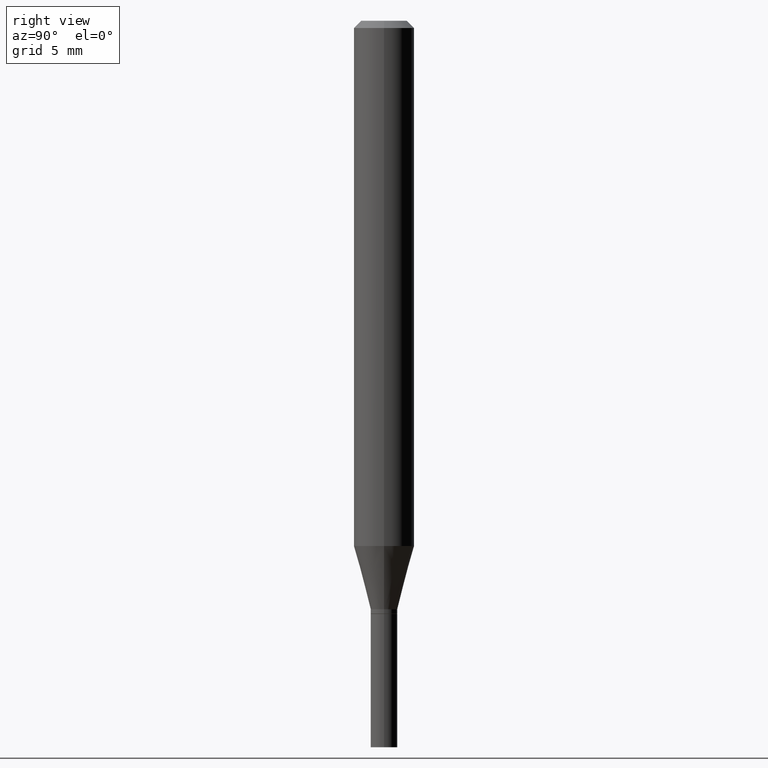
[diagram: clean part render]
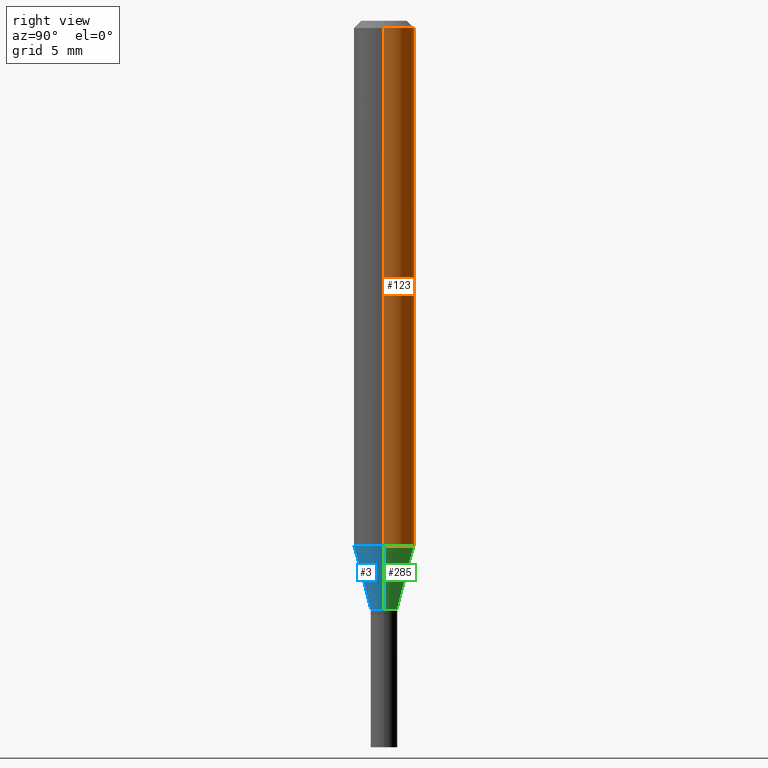
[diagram: same view with three faces highlighted in distinct colors, each labeled with its STEP entity id]
A machine part, right view with three faces highlighted in distinct colors.
Their STEP definitions:

[orange] entity #123 — the highlighted cylindrical surface (edge-blend (fillet) strip) has radius 1.5875 mm, axis along (-0, 0, 1).
#7 = AXIS2_PLACEMENT_3D ( 'NONE', #54, #225, #46 ) ;
#22 = LINE ( 'NONE', #425, #67 ) ;
#46 = DIRECTION ( 'NONE',  ( 1.000000000000000000, -6.982962677686266711E-15, 4.876176775795935793E-29 ) ) ;
#49 = CARTESIAN_POINT ( 'NONE',  ( 0.06250000000000000000, -4.222521492791372833E-15, -1.084378221735089909 ) ) ;
#54 = CARTESIAN_POINT ( 'NONE',  ( 0.000000000000000000, 0.000000000000000000, 0.000000000000000000 ) ) ;
#56 = DIRECTION ( 'NONE',  ( -2.445468806185136597E-29, 3.491481338843145583E-15, 1.000000000000000000 ) ) ;
#67 = VECTOR ( 'NONE', #197, 39.37007874015748143 ) ;
#71 = ORIENTED_EDGE ( 'NONE', *, *, #145, .F. ) ;
#81 = FACE_OUTER_BOUND ( 'NONE', #154, .T. ) ;
#83 = EDGE_CURVE ( 'NONE', #176, #367, #236, .T. ) ;
#89 = CARTESIAN_POINT ( 'NONE',  ( -0.06250000000000000000, -1.475140062909251703E-15, -0.01499999999999999944 ) ) ;
#102 = VERTEX_POINT ( 'NONE', #89 ) ;
#113 = DIRECTION ( 'NONE',  ( 1.000000000000000000, -6.982962677686266711E-15, 0.000000000000000000 ) ) ;
#123 = ADVANCED_FACE ( 'NONE', ( #81 ), #450, .T. ) ;
#143 = ORIENTED_EDGE ( 'NONE', *, *, #373, .T. ) ;
#145 = EDGE_CURVE ( 'NONE', #176, #404, #267, .T. ) ;
#154 = EDGE_LOOP ( 'NONE', ( #247, #143, #205, #71 ) ) ;
#155 = CIRCLE ( 'NONE', #424, 0.06250000000000000000 ) ;
#165 = DIRECTION ( 'NONE',  ( 1.000000000000000000, -6.982962677686262766E-15, 0.000000000000000000 ) ) ;
#176 = VERTEX_POINT ( 'NONE', #49 ) ;
#197 = DIRECTION ( 'NONE',  ( -2.445468806185136877E-29, 3.491481338843145188E-15, 1.000000000000000000 ) ) ;
#205 = ORIENTED_EDGE ( 'NONE', *, *, #245, .F. ) ;
#225 = DIRECTION ( 'NONE',  ( -2.445468806185136597E-29, 3.491481338843145583E-15, 1.000000000000000000 ) ) ;
#236 = CIRCLE ( 'NONE', #392, 0.06250000000000000000 ) ;
#245 = EDGE_CURVE ( 'NONE', #404, #102, #155, .T. ) ;
#247 = ORIENTED_EDGE ( 'NONE', *, *, #83, .T. ) ;
#263 = CARTESIAN_POINT ( 'NONE',  ( 3.668203209277705088E-31, -5.237222008264718399E-17, -0.01499999999999999944 ) ) ;
#267 = LINE ( 'NONE', #411, #272 ) ;
#272 = VECTOR ( 'NONE', #378, 39.37007874015748143 ) ;
#315 = CARTESIAN_POINT ( 'NONE',  ( -0.06250000000000000000, -3.341997115585918942E-15, -1.084378221735089909 ) ) ;
#347 = CARTESIAN_POINT ( 'NONE',  ( 2.651813115359671942E-29, -3.786086325435981164E-15, -1.084378221735089909 ) ) ;
#367 = VERTEX_POINT ( 'NONE', #315 ) ;
#373 = EDGE_CURVE ( 'NONE', #367, #102, #22, .T. ) ;
#378 = DIRECTION ( 'NONE',  ( -2.445468806185136877E-29, 3.491481338843145188E-15, 1.000000000000000000 ) ) ;
#392 = AXIS2_PLACEMENT_3D ( 'NONE', #347, #427, #165 ) ;
#404 = VERTEX_POINT ( 'NONE', #418 ) ;
#411 = CARTESIAN_POINT ( 'NONE',  ( 0.06250000000000000000, -4.364351673553916694E-16, 3.047610484872459871E-30 ) ) ;
#418 = CARTESIAN_POINT ( 'NONE',  ( 0.06250000000000000000, -4.888073874380388472E-16, -0.01499999999999999944 ) ) ;
#424 = AXIS2_PLACEMENT_3D ( 'NONE', #263, #56, #113 ) ;
#425 = CARTESIAN_POINT ( 'NONE',  ( -0.06250000000000000000, 4.440892098500626162E-16, -3.074334431409316114E-30 ) ) ;
#427 = DIRECTION ( 'NONE',  ( -2.445468806185136597E-29, 3.491481338843145583E-15, 1.000000000000000000 ) ) ;
#450 = CYLINDRICAL_SURFACE ( 'NONE', #7, 0.06250000000000000000 ) ;

[blue] entity #3 — the highlighted conical surface has half-angle 15 deg.
#3 = ADVANCED_FACE ( 'NONE', ( #403 ), #16, .T. ) ;
#13 = EDGE_CURVE ( 'NONE', #367, #176, #313, .T. ) ;
#16 = CONICAL_SURFACE ( 'NONE', #128, 0.02750000000000006953, 0.2617993877991501850 ) ;
#21 = DIRECTION ( 'NONE',  ( 1.000000000000000000, -6.982962677686280121E-15, 0.000000000000000000 ) ) ;
#49 = CARTESIAN_POINT ( 'NONE',  ( 0.06250000000000000000, -4.222521492791372833E-15, -1.084378221735089909 ) ) ;
#66 = DIRECTION ( 'NONE',  ( -2.445468806185136597E-29, 3.491481338843145583E-15, 1.000000000000000000 ) ) ;
#121 = VECTOR ( 'NONE', #379, 39.37007874015748143 ) ;
#128 = AXIS2_PLACEMENT_3D ( 'NONE', #184, #66, #151 ) ;
#151 = DIRECTION ( 'NONE',  ( 1.000000000000000000, -6.982962677686280121E-15, 0.000000000000000000 ) ) ;
#171 = VERTEX_POINT ( 'NONE', #344 ) ;
#176 = VERTEX_POINT ( 'NONE', #49 ) ;
#182 = AXIS2_PLACEMENT_3D ( 'NONE', #448, #383, #21 ) ;
#184 = CARTESIAN_POINT ( 'NONE',  ( 2.971244599514940898E-29, -4.242149826694421699E-15, -1.215000000000000080 ) ) ;
#187 = CARTESIAN_POINT ( 'NONE',  ( 2.651813115359671942E-29, -3.786086325435981164E-15, -1.084378221735089909 ) ) ;
#189 = EDGE_CURVE ( 'NONE', #296, #171, #345, .T. ) ;
#195 = EDGE_CURVE ( 'NONE', #171, #176, #226, .T. ) ;
#196 = CARTESIAN_POINT ( 'NONE',  ( 0.02750000000000006953, -4.434181300330794981E-15, -1.215000000000000080 ) ) ;
#211 = DIRECTION ( 'NONE',  ( -2.445468806185136597E-29, 3.491481338843145583E-15, 1.000000000000000000 ) ) ;
#214 = CARTESIAN_POINT ( 'NONE',  ( -0.02750000000000006953, -4.046750574360394369E-15, -1.215000000000000080 ) ) ;
#215 = ORIENTED_EDGE ( 'NONE', *, *, #302, .F. ) ;
#226 = LINE ( 'NONE', #196, #121 ) ;
#252 = EDGE_LOOP ( 'NONE', ( #215, #316, #464, #369 ) ) ;
#291 = DIRECTION ( 'NONE',  ( 1.000000000000000000, -6.982962677686262766E-15, 0.000000000000000000 ) ) ;
#296 = VERTEX_POINT ( 'NONE', #463 ) ;
#302 = EDGE_CURVE ( 'NONE', #296, #367, #407, .T. ) ;
#313 = CIRCLE ( 'NONE', #429, 0.06250000000000000000 ) ;
#315 = CARTESIAN_POINT ( 'NONE',  ( -0.06250000000000000000, -3.341997115585918942E-15, -1.084378221735089909 ) ) ;
#316 = ORIENTED_EDGE ( 'NONE', *, *, #189, .T. ) ;
#344 = CARTESIAN_POINT ( 'NONE',  ( 0.02750000000000006953, -4.434181300330794981E-15, -1.215000000000000080 ) ) ;
#345 = CIRCLE ( 'NONE', #182, 0.02750000000000006953 ) ;
#367 = VERTEX_POINT ( 'NONE', #315 ) ;
#368 = DIRECTION ( 'NONE',  ( -0.2588190451025214611, 5.211531920934550253E-15, 0.9659258262890679791 ) ) ;
#369 = ORIENTED_EDGE ( 'NONE', *, *, #13, .F. ) ;
#379 = DIRECTION ( 'NONE',  ( 0.2588190451025214611, 1.565188264969620982E-15, 0.9659258262890679791 ) ) ;
#383 = DIRECTION ( 'NONE',  ( -2.445468806185136597E-29, 3.491481338843145583E-15, 1.000000000000000000 ) ) ;
#399 = VECTOR ( 'NONE', #368, 39.37007874015748143 ) ;
#403 = FACE_OUTER_BOUND ( 'NONE', #252, .T. ) ;
#407 = LINE ( 'NONE', #214, #399 ) ;
#429 = AXIS2_PLACEMENT_3D ( 'NONE', #187, #211, #291 ) ;
#448 = CARTESIAN_POINT ( 'NONE',  ( 2.971244599514940898E-29, -4.242149826694421699E-15, -1.215000000000000080 ) ) ;
#463 = CARTESIAN_POINT ( 'NONE',  ( -0.02750000000000006953, -3.694373844973156064E-15, -1.215000000000000080 ) ) ;
#464 = ORIENTED_EDGE ( 'NONE', *, *, #195, .T. ) ;

[green] entity #285 — the highlighted conical surface has half-angle 15 deg.
#4 = ORIENTED_EDGE ( 'NONE', *, *, #83, .F. ) ;
#35 = CARTESIAN_POINT ( 'NONE',  ( 2.971244599514940898E-29, -4.242149826694421699E-15, -1.215000000000000080 ) ) ;
#37 = FACE_OUTER_BOUND ( 'NONE', #117, .T. ) ;
#49 = CARTESIAN_POINT ( 'NONE',  ( 0.06250000000000000000, -4.222521492791372833E-15, -1.084378221735089909 ) ) ;
#62 = AXIS2_PLACEMENT_3D ( 'NONE', #35, #76, #147 ) ;
#64 = CIRCLE ( 'NONE', #249, 0.02750000000000006953 ) ;
#76 = DIRECTION ( 'NONE',  ( -2.445468806185136597E-29, 3.491481338843145583E-15, 1.000000000000000000 ) ) ;
#83 = EDGE_CURVE ( 'NONE', #176, #367, #236, .T. ) ;
#109 = CONICAL_SURFACE ( 'NONE', #62, 0.02750000000000006953, 0.2617993877991501850 ) ;
#115 = DIRECTION ( 'NONE',  ( 1.000000000000000000, -6.982962677686280121E-15, 0.000000000000000000 ) ) ;
#117 = EDGE_LOOP ( 'NONE', ( #357, #370, #4, #174 ) ) ;
#121 = VECTOR ( 'NONE', #379, 39.37007874015748143 ) ;
#147 = DIRECTION ( 'NONE',  ( 1.000000000000000000, -6.982962677686280121E-15, 0.000000000000000000 ) ) ;
#165 = DIRECTION ( 'NONE',  ( 1.000000000000000000, -6.982962677686262766E-15, 0.000000000000000000 ) ) ;
#171 = VERTEX_POINT ( 'NONE', #344 ) ;
#174 = ORIENTED_EDGE ( 'NONE', *, *, #195, .F. ) ;
#176 = VERTEX_POINT ( 'NONE', #49 ) ;
#195 = EDGE_CURVE ( 'NONE', #171, #176, #226, .T. ) ;
#196 = CARTESIAN_POINT ( 'NONE',  ( 0.02750000000000006953, -4.434181300330794981E-15, -1.215000000000000080 ) ) ;
#209 = CARTESIAN_POINT ( 'NONE',  ( 2.971244599514940898E-29, -4.242149826694421699E-15, -1.215000000000000080 ) ) ;
#214 = CARTESIAN_POINT ( 'NONE',  ( -0.02750000000000006953, -4.046750574360394369E-15, -1.215000000000000080 ) ) ;
#226 = LINE ( 'NONE', #196, #121 ) ;
#236 = CIRCLE ( 'NONE', #392, 0.06250000000000000000 ) ;
#249 = AXIS2_PLACEMENT_3D ( 'NONE', #209, #375, #115 ) ;
#271 = EDGE_CURVE ( 'NONE', #171, #296, #64, .T. ) ;
#285 = ADVANCED_FACE ( 'NONE', ( #37 ), #109, .T. ) ;
#296 = VERTEX_POINT ( 'NONE', #463 ) ;
#302 = EDGE_CURVE ( 'NONE', #296, #367, #407, .T. ) ;
#315 = CARTESIAN_POINT ( 'NONE',  ( -0.06250000000000000000, -3.341997115585918942E-15, -1.084378221735089909 ) ) ;
#344 = CARTESIAN_POINT ( 'NONE',  ( 0.02750000000000006953, -4.434181300330794981E-15, -1.215000000000000080 ) ) ;
#347 = CARTESIAN_POINT ( 'NONE',  ( 2.651813115359671942E-29, -3.786086325435981164E-15, -1.084378221735089909 ) ) ;
#357 = ORIENTED_EDGE ( 'NONE', *, *, #271, .T. ) ;
#367 = VERTEX_POINT ( 'NONE', #315 ) ;
#368 = DIRECTION ( 'NONE',  ( -0.2588190451025214611, 5.211531920934550253E-15, 0.9659258262890679791 ) ) ;
#370 = ORIENTED_EDGE ( 'NONE', *, *, #302, .T. ) ;
#375 = DIRECTION ( 'NONE',  ( -2.445468806185136597E-29, 3.491481338843145583E-15, 1.000000000000000000 ) ) ;
#379 = DIRECTION ( 'NONE',  ( 0.2588190451025214611, 1.565188264969620982E-15, 0.9659258262890679791 ) ) ;
#392 = AXIS2_PLACEMENT_3D ( 'NONE', #347, #427, #165 ) ;
#399 = VECTOR ( 'NONE', #368, 39.37007874015748143 ) ;
#407 = LINE ( 'NONE', #214, #399 ) ;
#427 = DIRECTION ( 'NONE',  ( -2.445468806185136597E-29, 3.491481338843145583E-15, 1.000000000000000000 ) ) ;
#463 = CARTESIAN_POINT ( 'NONE',  ( -0.02750000000000006953, -3.694373844973156064E-15, -1.215000000000000080 ) ) ;